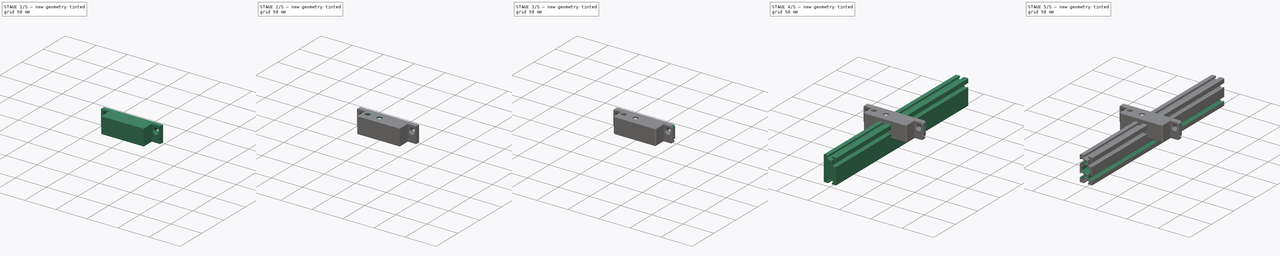
[diagram: build sequence overview — one tinted view per stage of 5, left to right]
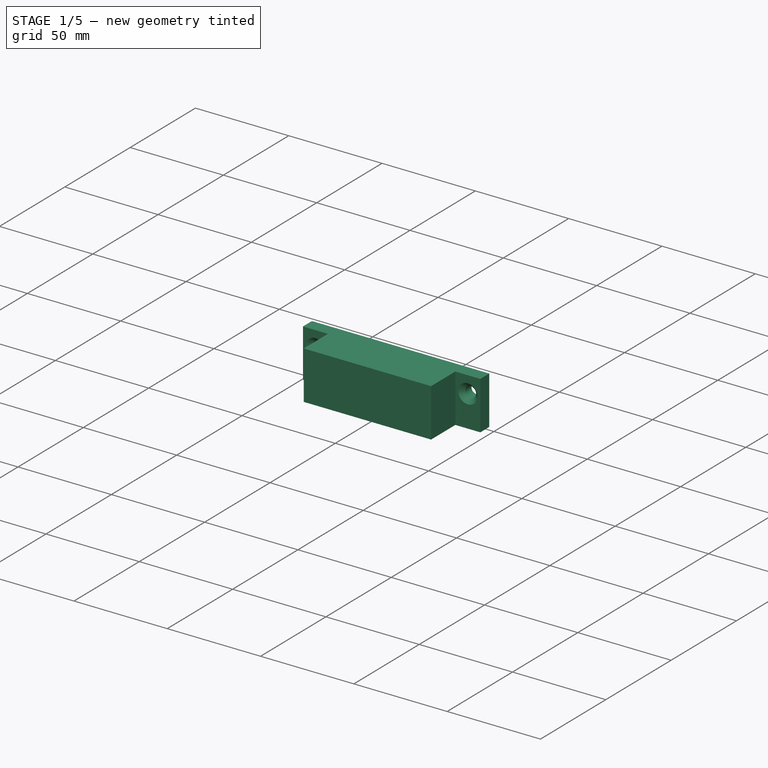
[diagram: stage 1 of 5 — iso view after this stage's code; geometry added in this stage tinted green]
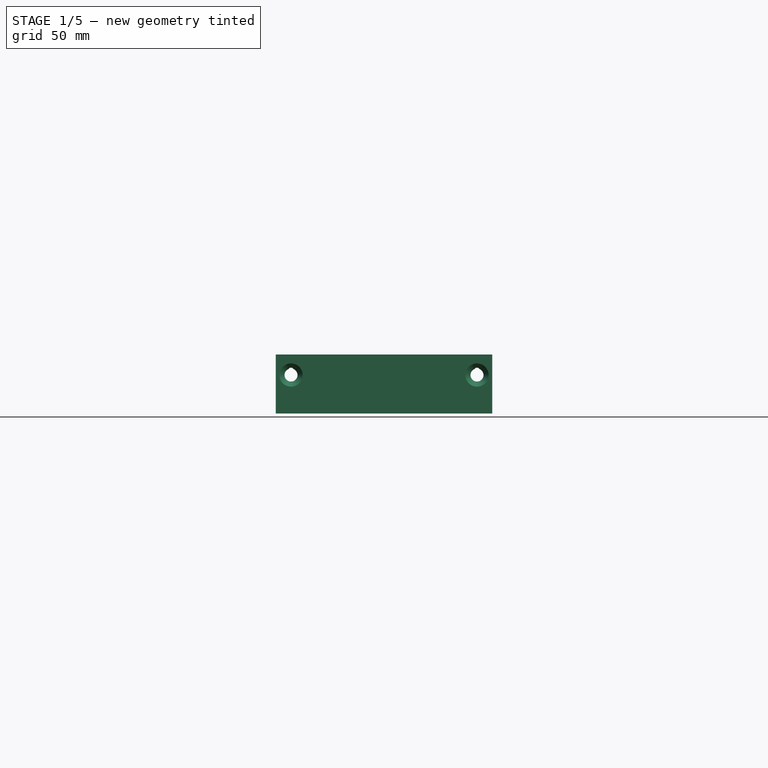
[diagram: stage 1 of 5 — front view after this stage's code; geometry added in this stage tinted green]
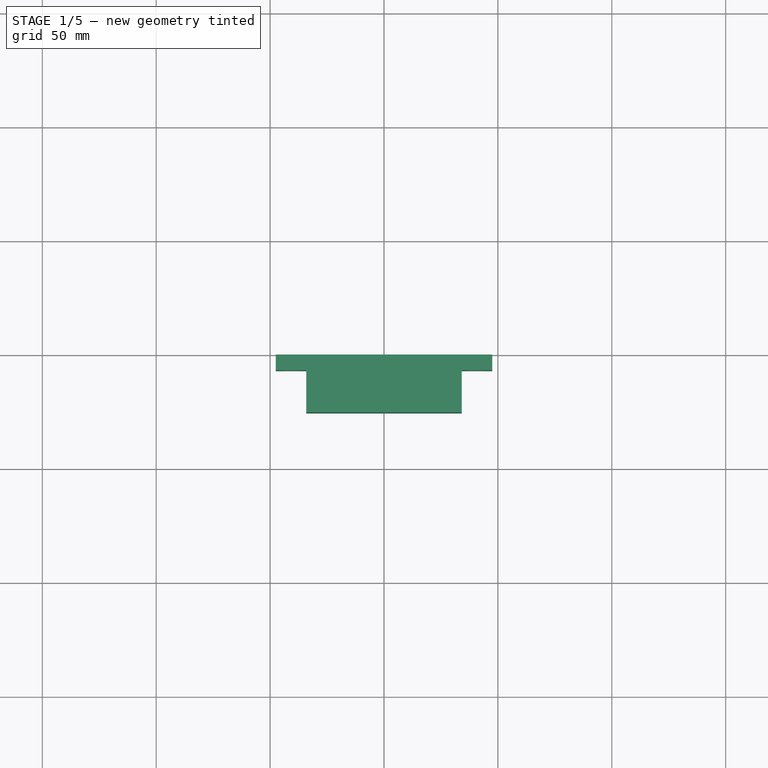
[diagram: stage 1 of 5 — top view after this stage's code; geometry added in this stage tinted green]
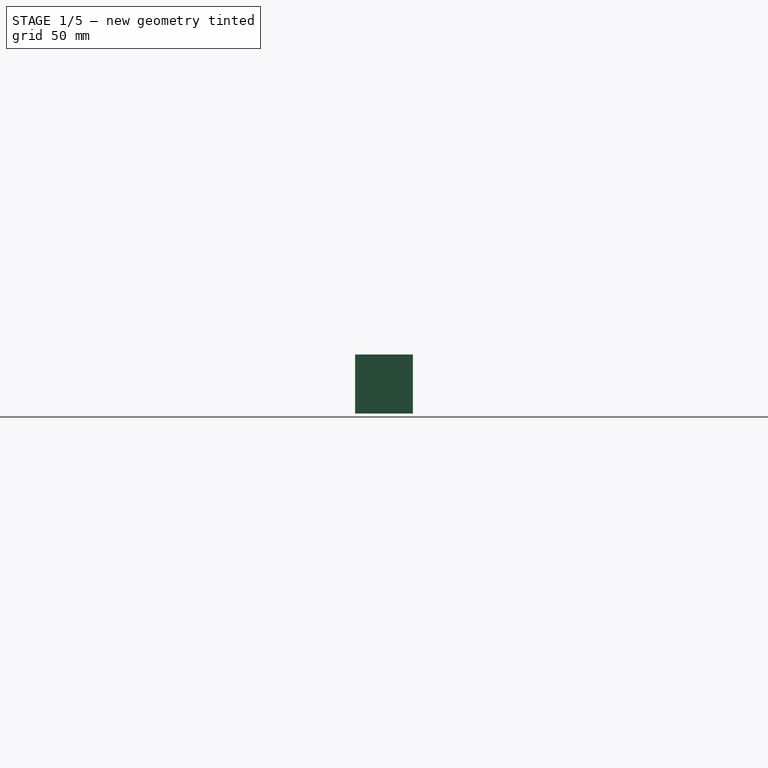
[diagram: stage 1 of 5 — right view after this stage's code; geometry added in this stage tinted green]
FCSTD DOCUMENT  (FreeCAD 1.0R39109 (Git))
Label: isolated_probe_mount
License: All rights reserved
LicenseURL: http://en.wikipedia.org/wiki/All_rights_reserved
objects: Sketcher::SketchObject×12, PartDesign::Pocket×8, PartDesign::Mirrored×4, PartDesign::Chamfer×4, PartDesign::Pad×3, PartDesign::LinearPattern×3, PartDesign::Body×2, PartDesign::MultiTransform×1, App::Part×1, Spreadsheet::Sheet×1, PartDesign::Hole×1
note: 90 computed .brp shape members not serialized (recipe doc carries the construction recipe); baked Part::Feature solids carry a one-line shape summary decoded from their .brp

FEATURE [PartDesign::Body] Body006  label="2040"
  AllowCompound = false
  Group = -> [Sketch010,Pad004,Sketch013,Pocket007,Mirrored001,Sketch012,Pocket005,MultiTransform,LinearPattern002,Mirrored002,Sketch009,Pocket006,Mirrored003,Sketch011,Pocket008]
  Origin = -> Origin011
  Placement = pos=(0,0,0) rot=(0,0,1;1.5708rad)
  Tip = -> Pocket008
FEATURE [App::Part] Part  label="aluminum"
  Group = -> [Body006]
  Origin = -> Origin
FEATURE [Spreadsheet::Sheet] Spreadsheet  label="settings"
  cells = A1='After changing parameters refresh (CTRL + R) to update the model; A3='Print Tolerance; B3(tolerance)=0.2; C3='<- oversize/undersize dimensions by this amount, accounts for 3D print inacuracies; A4='Minimum Print Width; B4(min_width)=1.6; C4='<- minimum wall thickness; A5='Minimum Print Height; B5(min_height)=2.4; C5='<- minimum floor/ceiling thickness; A7='Bannana Jack; B7='Diameter; C7='Flat to Flat; D7='Spacing; B8(bannana_diameter)=8; C8(bannana_flat_to_flat)=6.3; D8(bannana_spacing)=19.05; A10='PCB; B10='Length; C10='Width; D10='Mounting Hole Spacing; B11(pcb_lenght)=31; C11(pcb_width)=20; D11(pcb_mount_spacing)=24; A13='Wire Channel; B13='Width; C13='Depth; B14(wire_channel_width)=3; C14(wire_channel_depth)=3; A16='M3 Self Tap Hole Diameter; B16(m3_self_tap_diameter)=2.4; A18='M5 Clearance Hole Diameter; B18(bolt_clearance_hole)=5.5; A19='M5 Counter Sink Diameter; B19(counter_sink_diameter)=10; A20='M5 Blunted Point; B20='Width; C20='Height; B21(hhbp_width)=2.4; C21(hhbp_height)=0.6; A23='Calculated Parameters; A24='DO NOT MODIFY; A25='Mount Tab Width; B25(mount_width)==counter_sink_diameter + tolerance + min_width + min_width
FEATURE [Sketcher::SketchObject] Sketch018
  ArcFitTolerance = 1e-06
  AttachmentSupport = -> [XY_Plane013]
  FullyConstrained = true
  MakeInternals = false
  MapMode = 5
  expr: Constraints[21] = <<settings>>.mount_width
  expr: Constraints[32] = <<settings>>.counter_sink_diameter + <<settings>>.tolerance
  expr: Constraints[33] = <<settings>>.bolt_clearance_hole + <<settings>>.tolerance
  expr: Constraints[35] = <<settings>>.min_width + <<settings>>.wire_channel_depth
  expr: Constraints[55] = <<settings>>.bannana_diameter + <<settings>>.tolerance
  expr: Constraints[58] = <<settings>>.bannana_spacing
  expr: Constraints[68] = <<settings>>.pcb_lenght
  sketch-geometry (26):
    g0: LineSegment StartX=-47.525 StartY=0 StartZ=0 EndX=-47.525 EndY=-6.85 EndZ=0
    g1: LineSegment StartX=-47.525 StartY=-6.85 StartZ=0 EndX=-34.125 EndY=-6.85 EndZ=0
    g2: LineSegment StartX=47.525 StartY=-6.85 StartZ=0 EndX=47.525 EndY=0 EndZ=0
    g3: LineSegment StartX=47.525 StartY=0 StartZ=0 EndX=-47.525 EndY=0 EndZ=0
    g4: LineSegment StartX=-34.125 StartY=-6.85 StartZ=0 EndX=-34.125 EndY=-25.4 EndZ=0
    g5: LineSegment StartX=-34.125 StartY=-25.4 StartZ=0 EndX=34.125 EndY=-25.4 EndZ=0
    g6: LineSegment StartX=34.125 StartY=-25.4 StartZ=0 EndX=34.125 EndY=-6.85 EndZ=0
    g7: LineSegment [constr] StartX=34.125 StartY=-6.85 StartZ=0 EndX=-34.125 EndY=-6.85 EndZ=0
    g8: LineSegment StartX=34.125 StartY=-6.85 StartZ=0 EndX=47.525 EndY=-6.85 EndZ=0
    g9: LineSegment [constr] StartX=47.525 StartY=-6.85 StartZ=0 EndX=57.725 EndY=-6.85 EndZ=0
    g10: LineSegment [constr] StartX=57.725 StartY=-6.85 StartZ=0 EndX=55.475 EndY=-4.6 EndZ=0
    g11: LineSegment [constr] StartX=55.475 StartY=-4.6 StartZ=0 EndX=49.775 EndY=-4.6 EndZ=0
    g12: LineSegment [constr] StartX=47.525 StartY=-6.85 StartZ=0 EndX=49.775 EndY=-4.6 EndZ=0
    g13: LineSegment [constr] StartX=52.625 StartY=-6.85 StartZ=0 EndX=52.625 EndY=-4.6 EndZ=0
    g14: LineSegment [constr] StartX=-2.875 StartY=-25.4 StartZ=0 EndX=-2.875 EndY=-6.85 EndZ=0
    g15: LineSegment [constr] StartX=-2.875 StartY=-6.85 StartZ=0 EndX=-11.075 EndY=-6.85 EndZ=0
    g16: LineSegment [constr] StartX=-11.075 StartY=-6.85 StartZ=0 EndX=-11.075 EndY=-25.4 EndZ=0
    g17: LineSegment [constr] StartX=-11.075 StartY=-25.4 StartZ=0 EndX=-2.875 EndY=-25.4 EndZ=0
    g18: LineSegment [constr] StartX=-21.925 StartY=-25.4 StartZ=0 EndX=-21.925 EndY=-6.85 EndZ=0
    g19: LineSegment [constr] StartX=-21.925 StartY=-6.85 StartZ=0 EndX=-30.125 EndY=-6.85 EndZ=0
    g20: LineSegment [constr] StartX=-30.125 StartY=-6.85 StartZ=0 EndX=-30.125 EndY=-25.4 EndZ=0
    g21: LineSegment [constr] StartX=-30.125 StartY=-25.4 StartZ=0 EndX=-21.925 EndY=-25.4 EndZ=0
    g22: LineSegment [constr] StartX=30.125 StartY=-25.4 StartZ=0 EndX=30.125 EndY=-6.85 EndZ=0
    g23: LineSegment [constr] StartX=30.125 StartY=-6.85 StartZ=0 EndX=-0.875 EndY=-6.85 EndZ=0
    g24: LineSegment [constr] StartX=-0.875 StartY=-6.85 StartZ=0 EndX=-0.875 EndY=-25.4 EndZ=0
    g25: LineSegment [constr] StartX=-0.875 StartY=-25.4 StartZ=0 EndX=30.125 EndY=-25.4 EndZ=0
  constraints (73):
    c: Coincident(g0,g1)
    c: Coincident(g8,g2)
    c: Coincident(g2,g3)
    c: Coincident(g3,g0)
    c: Vertical(g0)
    c: Vertical(g2)
    c: Horizontal(g1)
    c: PointOnObject(g0,g-1)
    c: Coincident(g4,g5)
    c: Coincident(g5,g6)
    c: Coincident(g6,g7)
    c: Coincident(g7,g4)
    c: Vertical(g4)
    c: Vertical(g6)
    c: Horizontal(g7)
    c: Coincident(g1,g4)
    c: Coincident(g6,g8)
    c: Horizontal(g8)
    c: Symmetric(g0,g2,g-2)
    c: Symmetric(g4,g5,g-2)
    c: DistanceY(g4,g0) = 25.4  'body_width'
    c: DistanceX(g8,g8) = 13.4
    c: Coincident(g9,g2)
    c: Horizontal(g9)
    c: Coincident(g10,g9)
    c: Coincident(g11,g10)
    c: Horizontal(g11)
    c: Coincident(g12,g2)
    c: Coincident(g12,g11)
    c: Symmetric(g9,g9,g13)
    c: Symmetric(g11,g11,g13)
    c: Vertical(g13)
    c: DistanceX(g9,g9) = 10.2
    c: DistanceX(g11,g11) = 5.7
    c: Perpendicular(g10,g12)
    c: DistanceY(g10,g2) = 4.6
    c: Coincident(g14,g15)
    c: Coincident(g15,g16)
    c: Coincident(g16,g17)
    c: Coincident(g17,g14)
    c: Vertical(g14)
    c: Vertical(g16)
    c: Horizontal(g15)
    c: Horizontal(g17)
    c: PointOnObject(g14,g5)
    c: Coincident(g18,g19)
    c: Coincident(g19,g20)
    c: Coincident(g20,g21)
    c: Coincident(g21,g18)
    c: Vertical(g18)
    c: Vertical(g20)
    c: Horizontal(g19)
    c: Horizontal(g21)
    c: PointOnObject(g18,g5)
    c: Equal(g19,g15)
    c: DistanceX(g19,g19) = 8.2
    c: PointOnObject(g19,g7)
    c: PointOnObject(g15,g7)
    c: DistanceX(g19,g15) = 19.05
    c: Coincident(g22,g23)
    c: Coincident(g23,g24)
    c: Coincident(g24,g25)
    c: Coincident(g25,g22)
    c: Vertical(g22)
    c: Vertical(g24)
    c: Horizontal(g23)
    c: Horizontal(g25)
    c: PointOnObject(g22,g5)
    c: DistanceX(g23,g23) = 31
    c: PointOnObject(g23,g7)
    c: Distance(g14,g23) = 2
    c: Distance(g22,g6) = 4  'pcb_edge_distance'
    c: DistanceX(g1,g19) = 4  'bannan_edge_distance'
FEATURE [PartDesign::Pad] Pad006
  Direction = (0,0,1)
  Length = 25.87
  Length2 = 10
  Profile = -> Sketch018
  ReferenceAxis = -> Sketch018 [N_Axis]
  Refine = true
  Suppressed = false
  Type = 0
  expr: Length = 25.87 mm
FEATURE [Sketcher::SketchObject] Sketch019
  ArcFitTolerance = 1e-06
  AttachmentSupport = -> [Pad006]
  ExternalGeometry = -> [Pad006]
  FullyConstrained = true
  MakeInternals = false
  MapMode = 5
  Placement = pos=(0,-6.85,0) rot=(1,0,0;1.5708rad)
  expr: Constraints[0] = 9 mm
  expr: Constraints[1] = 4 mm
  sketch-geometry (2):
    g0: Circle CenterX=40.825 CenterY=16.87 CenterZ=0 NormalX=0 NormalY=0 NormalZ=1 AngleXU=0 Radius=2
    g1: LineSegment [constr] StartX=40.825 StartY=16.87 StartZ=0 EndX=40.825 EndY=25.87 EndZ=0
  constraints (5):
    c: DistanceY(g0,g-3) = 9
    c: Diameter(g0) = 4
    c: Coincident(g1,g0)
    c: Symmetric(g-3,g-3,g1)
    c: Vertical(g1)
FEATURE [PartDesign::Hole] Hole002
  BaseFeature = -> Pad006
  CustomThreadClearance = 0
  Depth = 205.494
  DepthType = 1
  Diameter = 5.7
  DrillForDepth = false
  DrillPoint = 1
  DrillPointAngle = 118
  HoleCutCountersinkAngle = 90
  HoleCutCustomValues = false
  HoleCutDepth = 0
  HoleCutDiameter = 10.2
  HoleCutType = 2
  ModelThread = false
  Profile = -> Sketch019
  Refine = true
  Suppressed = false
  Tapered = false
  TaperedAngle = 90
  ThreadClass = 0
  ThreadDepth = 205.494
  ThreadDepthType = 0
  ThreadDirection = 0
  ThreadFit = 0
  ThreadSize = 0
  ThreadType = 0
  Threaded = false
  UseCustomThreadClearance = false
  expr: Diameter = <<settings>>.bolt_clearance_hole + <<settings>>.tolerance
  expr: HoleCutDiameter = <<settings>>.counter_sink_diameter + <<settings>>.tolerance
FEATURE [Sketcher::SketchObject] Sketch020
  ArcFitTolerance = 1e-06
  AttachmentSupport = -> [Hole002]
  ExternalGeometry = -> [Hole002]
  FullyConstrained = true
  MakeInternals = false
  MapMode = 5
  Placement = pos=(0,0,0) rot=(0,0.707107,0.707107;3.14159rad)
  expr: Constraints[10] = <<settings>>.hhbp_width
  expr: Constraints[11] = <<settings>>.hhbp_height
  sketch-geometry (6):
    g0: LineSegment [constr] StartX=-39.625 StartY=19.4551 StartZ=0 EndX=-42.025 EndY=19.4551 EndZ=0
    g1: LineSegment StartX=-42.025 StartY=19.4551 StartZ=0 EndX=-41.425 EndY=20.0551 EndZ=0
    g2: LineSegment StartX=-41.425 StartY=20.0551 StartZ=0 EndX=-40.225 EndY=20.0551 EndZ=0
    g3: LineSegment StartX=-40.225 StartY=20.0551 StartZ=0 EndX=-39.625 EndY=19.4551 EndZ=0
    g4: ArcOfCircle CenterX=-40.825 CenterY=16.87 CenterZ=0 NormalX=0 NormalY=0 NormalZ=1 AngleXU=0 Radius=2.85 StartAngle=2.0054 EndAngle=7.41938
    g5: LineSegment [constr] StartX=-40.825 StartY=16.87 StartZ=0 EndX=-40.825 EndY=20.0551 EndZ=0
  constraints (16):
    c: PointOnObject(g0,g-3)
    c: Horizontal(g0)
    c: Coincident(g0,g1)
    c: Coincident(g1,g2)
    c: Horizontal(g2)
    c: Coincident(g2,g3)
    c: Coincident(g3,g0)
    c: Coincident(g4,g-3)
    c: Coincident(g4,g0)
    c: Coincident(g4,g0)
    c: DistanceX(g0,g0) = 2.4
    c: DistanceY(g0,g2) = 0.6
    c: Angle(g3,g0) = 0.785398
    c: Coincident(g5,g4)
    c: Symmetric(g2,g2,g5)
    c: Vertical(g5)
FEATURE [PartDesign::Pocket] Pocket009
  BaseFeature = -> Hole002
  Direction = (0,-1,2e-16)
  Length = 5
  Length2 = 5
  Profile = -> Sketch020
  ReferenceAxis = -> Sketch020 [N_Axis]
  Refine = true
  Suppressed = false
  Type = 1
FEATURE [PartDesign::Mirrored] Mirrored005
  BaseFeature = -> Pocket009
  MirrorPlane = -> Sketch019 [V_Axis]
  Originals = -> [Hole002,Pocket009]
  Refine = true
  Suppressed = false
  TransformMode = 0
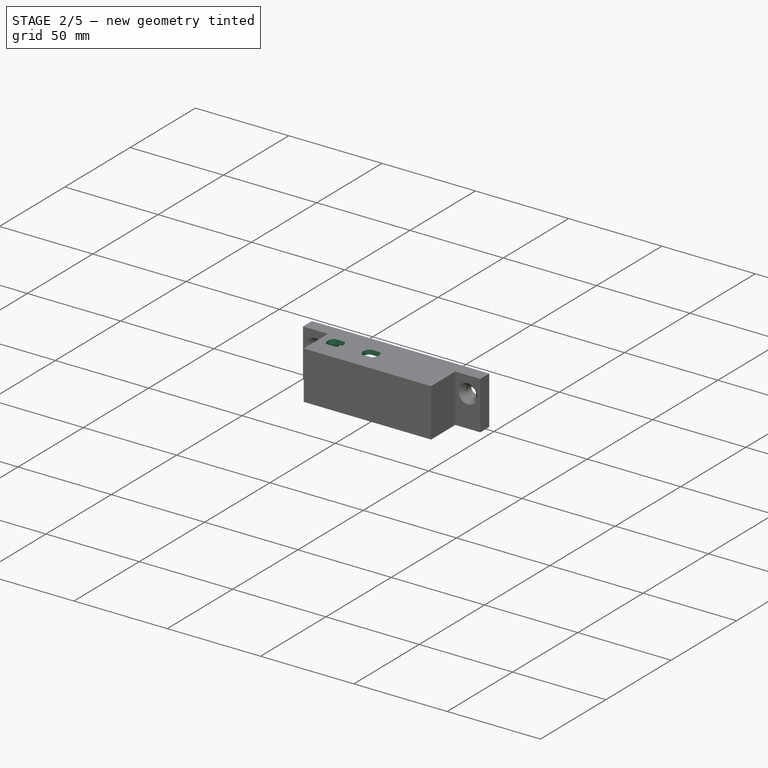
[diagram: stage 2 of 5 — iso view after this stage's code; geometry added in this stage tinted green]
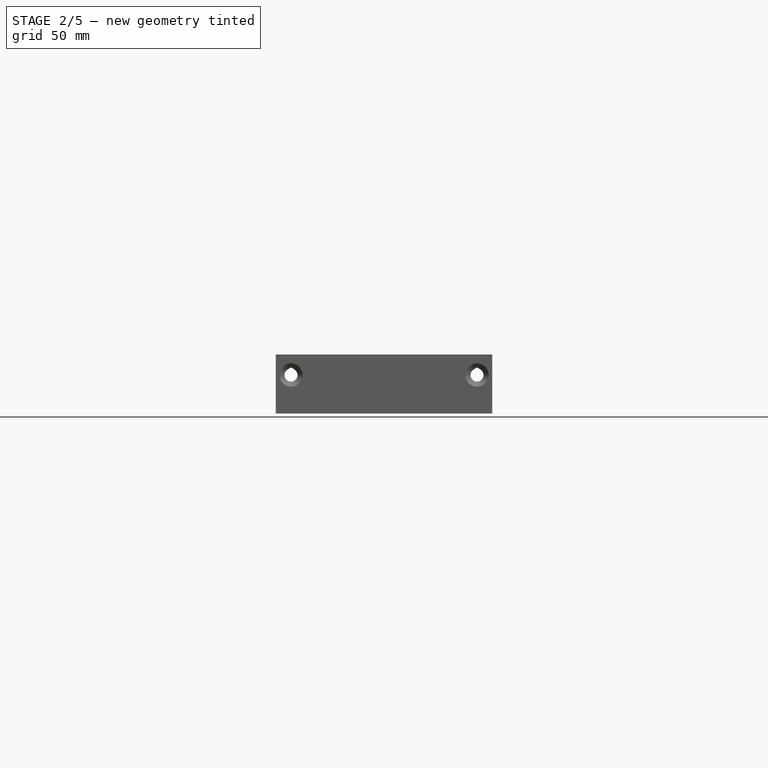
[diagram: stage 2 of 5 — front view after this stage's code; geometry added in this stage tinted green]
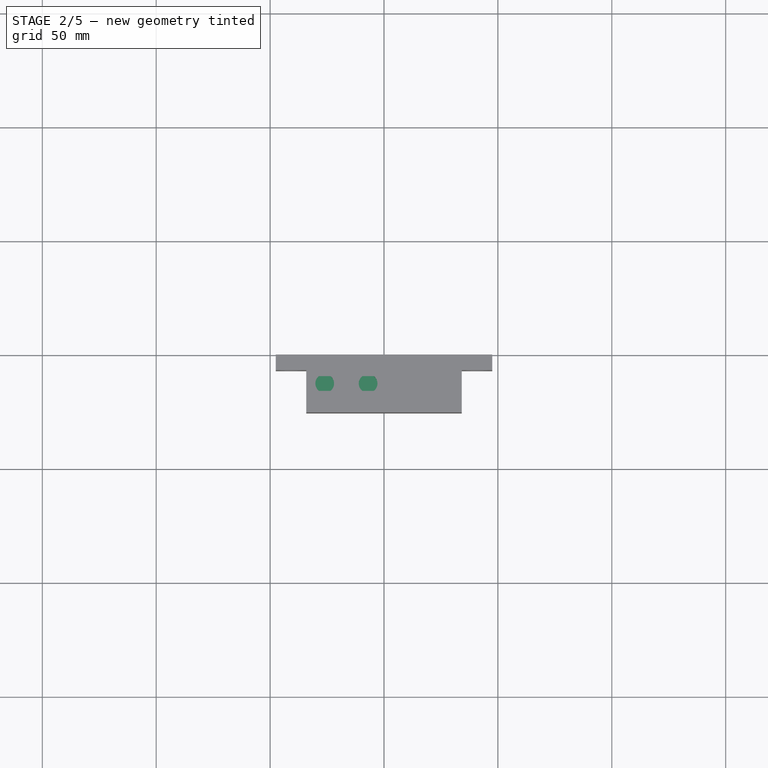
[diagram: stage 2 of 5 — top view after this stage's code; geometry added in this stage tinted green]
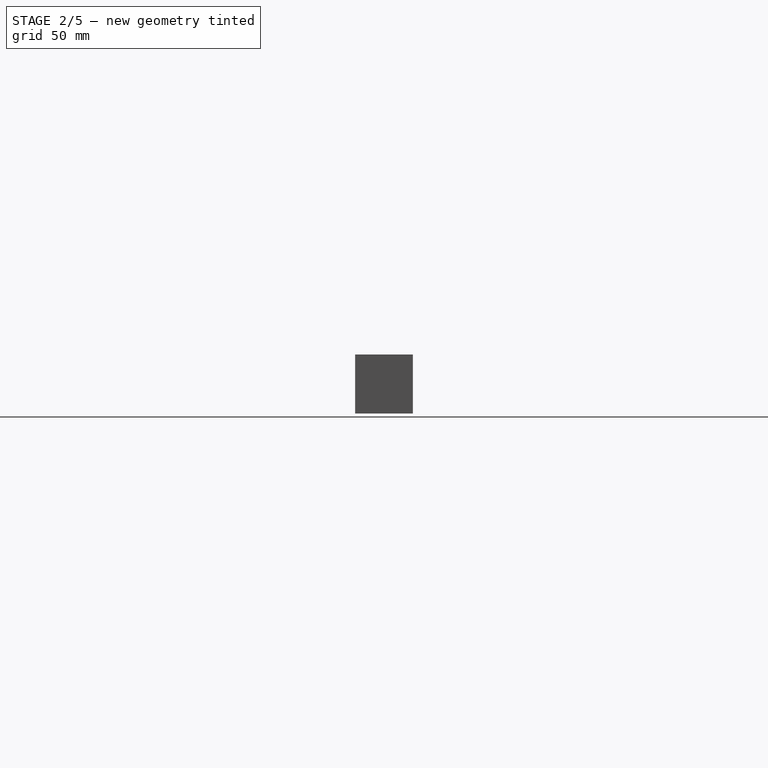
[diagram: stage 2 of 5 — right view after this stage's code; geometry added in this stage tinted green]
FEATURE [Sketcher::SketchObject] Sketch
  ArcFitTolerance = 1e-06
  AttachmentSupport = -> [Mirrored005]
  ExternalGeometry = -> [Mirrored005]
  FullyConstrained = true
  MakeInternals = false
  MapMode = 5
  Placement = pos=(0,0,0) rot=(0,0.707107,0.707107;3.14159rad)
  expr: Constraints[22] = <<settings>>.min_width
  expr: Constraints[23] = <<settings>>.min_height
  sketch-geometry (8):
    g0: LineSegment StartX=-32.525 StartY=23.47 StartZ=0 EndX=-32.525 EndY=2.4 EndZ=0
    g1: LineSegment StartX=-32.525 StartY=2.4 StartZ=0 EndX=32.525 EndY=2.4 EndZ=0
    g2: LineSegment StartX=32.525 StartY=2.4 StartZ=0 EndX=32.525 EndY=23.47 EndZ=0
    g3: LineSegment StartX=32.525 StartY=23.47 StartZ=0 EndX=-32.525 EndY=23.47 EndZ=0
    g4: LineSegment [constr] StartX=-32.525 StartY=23.47 StartZ=0 EndX=-34.125 EndY=23.47 EndZ=0
    g5: LineSegment [constr] StartX=32.525 StartY=23.47 StartZ=0 EndX=34.125 EndY=23.47 EndZ=0
    g6: LineSegment [constr] StartX=32.525 StartY=23.47 StartZ=0 EndX=32.525 EndY=25.87 EndZ=0
    g7: LineSegment [constr] StartX=32.525 StartY=2.4 StartZ=0 EndX=32.525 EndY=0 EndZ=0
  constraints (24):
    c: Coincident(g0,g1)
    c: Coincident(g1,g2)
    c: Coincident(g2,g3)
    c: Coincident(g3,g0)
    c: Vertical(g0)
    c: Vertical(g2)
    c: Horizontal(g1)
    c: Horizontal(g3)
    c: Coincident(g4,g0)
    c: PointOnObject(g4,g-3)
    c: Horizontal(g4)
    c: Coincident(g5,g2)
    c: PointOnObject(g5,g-4)
    c: Horizontal(g5)
    c: Coincident(g6,g2)
    c: Vertical(g6)
    c: Coincident(g7,g1)
    c: PointOnObject(g7,g-1)
    c: Vertical(g7)
    c: Equal(g4,g5)
    c: Equal(g6,g7)
    c: PointOnObject(g6,g-5)
    c: DistanceX(g4,g4) = 1.6
    c: DistanceY(g6,g6) = 2.4
FEATURE [PartDesign::Pocket] Pocket
  BaseFeature = -> Mirrored005
  Direction = (0,-1,2e-16)
  Length = 0
  Length2 = 5
  Offset = -1.6
  Profile = -> Sketch
  ReferenceAxis = -> Sketch [N_Axis]
  Refine = true
  Suppressed = false
  Type = 3
  UpToFace = -> Mirrored005 [Face16]
  expr: Offset = <<settings>>.min_width * -1
FEATURE [Sketcher::SketchObject] Sketch021
  ArcFitTolerance = 1e-06
  AttachmentSupport = -> [Pocket]
  ExternalGeometry = -> [Pocket]
  FullyConstrained = true
  MakeInternals = false
  MapMode = 5
  Placement = pos=(0,0,25.87) rot=(0,0,1;0rad)
  expr: Constraints[11] = <<settings>>.bannana_flat_to_flat + <<settings>>.tolerance
  expr: Constraints[18] = <<Sketch018>>.Constraints.bannan_edge_distance
  expr: Constraints[19] = <<Sketch018>>.Constraints.body_width / 2
  expr: Constraints[1] = <<settings>>.bannana_diameter + <<settings>>.tolerance
  sketch-geometry (6):
    g0: ArcOfCircle CenterX=-26.025 CenterY=-12.7 CenterZ=0 NormalX=0 NormalY=0 NormalZ=1 AngleXU=0 Radius=4.1 StartAngle=2.2264 EndAngle=4.05679
    g1: LineSegment StartX=-23.5255 StartY=-9.45 StartZ=0 EndX=-28.5245 EndY=-9.45 EndZ=0
    g2: LineSegment StartX=-28.5245 StartY=-15.95 StartZ=0 EndX=-23.5255 EndY=-15.95 EndZ=0
    g3: ArcOfCircle CenterX=-26.025 CenterY=-12.7 CenterZ=0 NormalX=0 NormalY=0 NormalZ=1 AngleXU=0 Radius=4.1 StartAngle=5.36799 EndAngle=7.19838
    g4: LineSegment [constr] StartX=-30.125 StartY=-12.7 StartZ=0 EndX=-34.125 EndY=-12.7 EndZ=0
    g5: LineSegment [constr] StartX=-30.125 StartY=-12.7 StartZ=0 EndX=-26.025 EndY=-12.7 EndZ=0
  constraints (20):
    c: PointOnObject(g2,g3)
    c: Diameter(g0) = 8.2
    c: Coincident(g3,g1)
    c: Coincident(g0,g1)
    c: Equal(g0,g3)
    c: Coincident(g0,g2)
    c: PointOnObject(g3,g2)
    c: Coincident(g0,g3)
    c: Equal(g1,g2)
    c: Horizontal(g1)
    c: Horizontal(g2)
    c: DistanceY(g2,g1) = 6.5
    c: PointOnObject(g4,g0)
    c: PointOnObject(g4,g-3)
    c: Horizontal(g4)
    c: Coincident(g5,g4)
    c: Coincident(g5,g0)
    c: Horizontal(g5)
    c: DistanceX(g4,g4) = 4
    c: DistanceY(g4,g-1) = 12.7
FEATURE [PartDesign::Pocket] Pocket010
  BaseFeature = -> Pocket
  Direction = (0,0,-1)
  Length = 5
  Length2 = 5
  Profile = -> Sketch021
  ReferenceAxis = -> Sketch021 [N_Axis]
  Refine = true
  Suppressed = false
  Type = 2
FEATURE [PartDesign::LinearPattern] LinearPattern
  BaseFeature = -> Pocket010
  Direction = -> Sketch021 [H_Axis]
  Length = 19.05
  Mode = 0
  Occurrences = 2
  Offset = 19.05
  Originals = -> [Pocket010]
  Refine = true
  Suppressed = false
  TransformMode = 0
  expr: Length = <<settings>>.bannana_spacing
FEATURE [Sketcher::SketchObject] Sketch022
  ArcFitTolerance = 1e-06
  AttachmentSupport = -> [LinearPattern]
  ExternalGeometry = -> [LinearPattern]
  FullyConstrained = true
  MakeInternals = false
  MapMode = 5
  Placement = pos=(0,-23.8,0) rot=(0,0.707107,0.707107;3.14159rad)
  expr: Constraints[10] = <<Sketch018>>.Constraints.pcb_edge_distance
  expr: Constraints[14] = 3.5 * 2
  expr: Constraints[17] = <<settings>>.m3_self_tap_diameter + <<settings>>.tolerance
  expr: Constraints[9] = <<settings>>.pcb_lenght
  sketch-geometry (13):
    g0: LineSegment [constr] StartX=-30.125 StartY=0 StartZ=0 EndX=0.875 EndY=0 EndZ=0
    g1: LineSegment [constr] StartX=0.875 StartY=0 StartZ=0 EndX=0.875 EndY=23.47 EndZ=0
    g2: LineSegment [constr] StartX=0.875 StartY=23.47 StartZ=0 EndX=-30.125 EndY=23.47 EndZ=0
    g3: LineSegment [constr] StartX=-30.125 StartY=23.47 StartZ=0 EndX=-30.125 EndY=0 EndZ=0
    g4: ArcOfCircle CenterX=-26.625 CenterY=6.4 CenterZ=0 NormalX=0 NormalY=0 NormalZ=1 AngleXU=0 Radius=3 StartAngle=-9e-16 EndAngle=3.14159
    g5: Circle [constr] CenterX=-26.625 CenterY=6.4 CenterZ=0 NormalX=0 NormalY=0 NormalZ=1 AngleXU=0 Radius=3.5
    g6: Circle CenterX=-26.625 CenterY=6.4 CenterZ=0 NormalX=0 NormalY=0 NormalZ=1 AngleXU=0 Radius=1.3
    g7: LineSegment [constr] StartX=-26.625 StartY=6.4 StartZ=0 EndX=-26.625 EndY=2.4 EndZ=0
    g8: GeomPoint [constr] X=-26.625 Y=2.9 Z=0
    g9: LineSegment StartX=-29.625 StartY=2.4 StartZ=0 EndX=-23.625 EndY=2.4 EndZ=0
    g10: LineSegment StartX=-23.625 StartY=2.4 StartZ=0 EndX=-23.625 EndY=6.4 EndZ=0
    g11: LineSegment [constr] StartX=-23.625 StartY=6.4 StartZ=0 EndX=-29.625 EndY=6.4 EndZ=0
    g12: LineSegment StartX=-29.625 StartY=6.4 StartZ=0 EndX=-29.625 EndY=2.4 EndZ=0
  constraints (36):
    c: Coincident(g0,g1)
    c: Coincident(g1,g2)
    c: Coincident(g2,g3)
    c: Coincident(g3,g0)
    c: Horizontal(g0)
    c: Horizontal(g2)
    c: Vertical(g1)
    c: Vertical(g3)
    c: PointOnObject(g0,g-1)
    c: DistanceX(g2,g2) = 31
    c: DistanceX(g-3,g2) = 4
    c: PointOnObject(g2,g-4)
    c: Diameter(g4) = 6
    c: Coincident(g5,g4)
    c: Diameter(g5) = 7
    c: Tangent(g5,g3)
    c: Coincident(g6,g4)
    c: Diameter(g6) = 2.6
    c: Coincident(g7,g4)
    c: PointOnObject(g7,g-5)
    c: Vertical(g7)
    c: PointOnObject(g8,g5)
    c: PointOnObject(g8,g7)
    c: Distance(g8,g7) = 0.5
    c: Coincident(g9,g10)
    c: Coincident(g10,g11)
    c: Coincident(g11,g12)
    c: Coincident(g12,g9)
    c: Horizontal(g9)
    c: Horizontal(g11)
    c: Vertical(g10)
    c: Vertical(g12)
    c: PointOnObject(g9,g-5)
    c: PointOnObject(g4,g11)
    c: Coincident(g4,g10)
    c: Coincident(g4,g11)
FEATURE [PartDesign::Pad] Pad
  BaseFeature = -> LinearPattern
  Direction = (0,1,-2e-16)
  Length = 10
  Length2 = 10
  Offset = 16
  Profile = -> Sketch022
  ReferenceAxis = -> Sketch022 [N_Axis]
  Refine = true
  Suppressed = false
  Type = 3
  UpToFace = -> LinearPattern [Face2]
FEATURE [PartDesign::LinearPattern] LinearPattern003
  BaseFeature = -> Pad
  Direction = -> Sketch022 [H_Axis]
  Length = 24
  Mode = 0
  Occurrences = 2
  Offset = 24
  Originals = -> [Pad]
  Refine = true
  Suppressed = false
  TransformMode = 0
  expr: Length = <<settings>>.pcb_mount_spacing
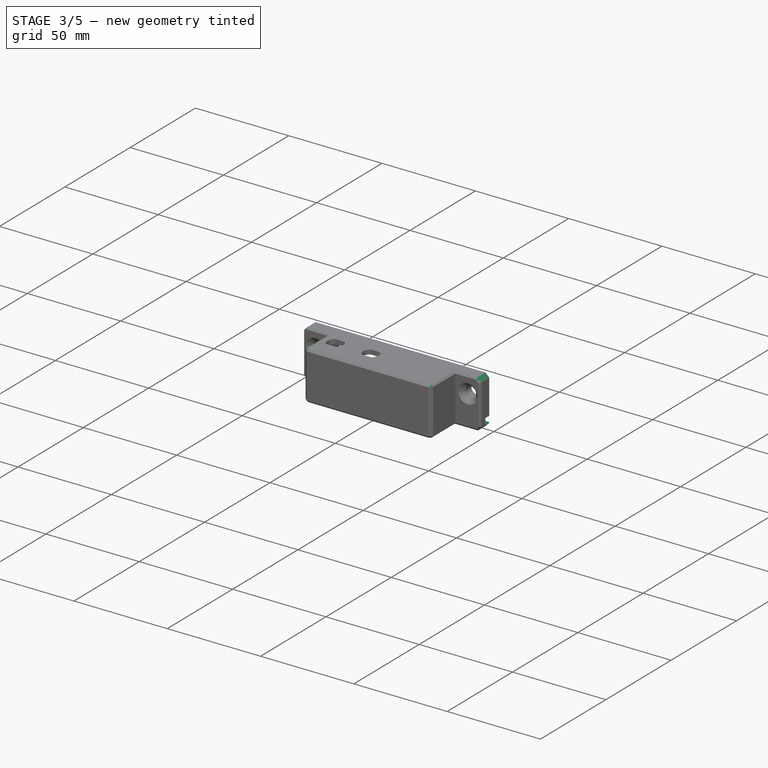
[diagram: stage 3 of 5 — iso view after this stage's code; geometry added in this stage tinted green]
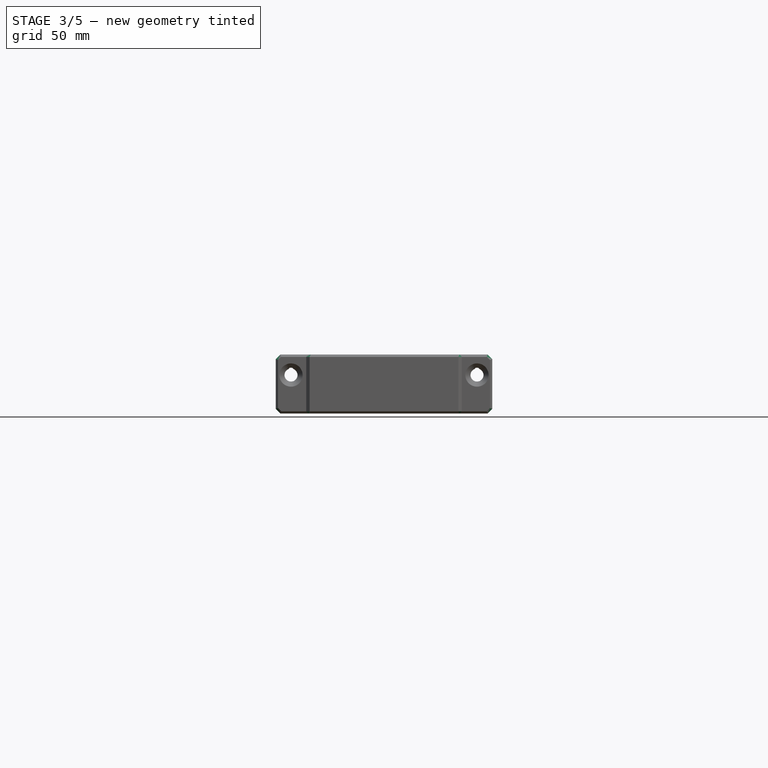
[diagram: stage 3 of 5 — front view after this stage's code; geometry added in this stage tinted green]
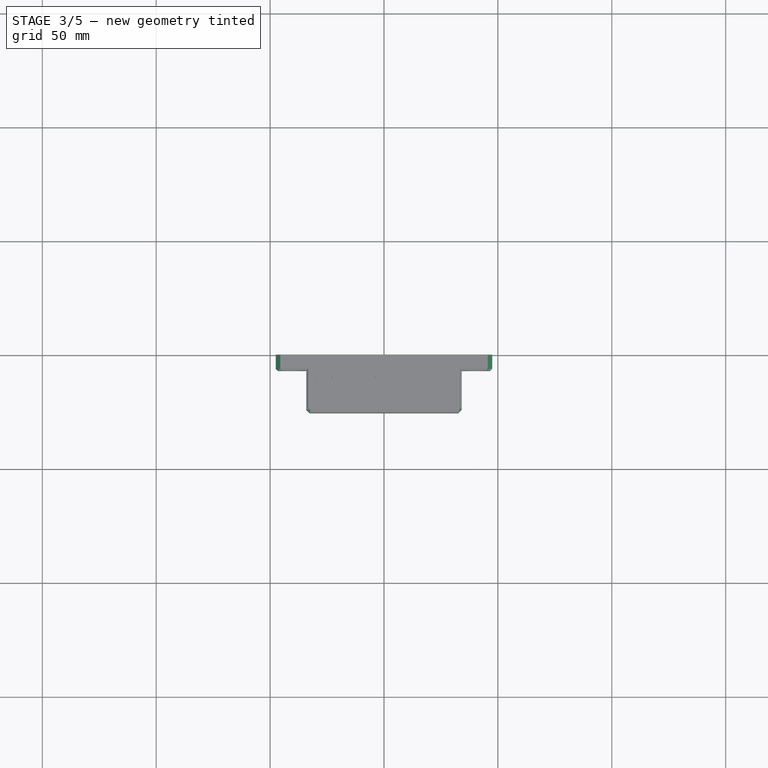
[diagram: stage 3 of 5 — top view after this stage's code; geometry added in this stage tinted green]
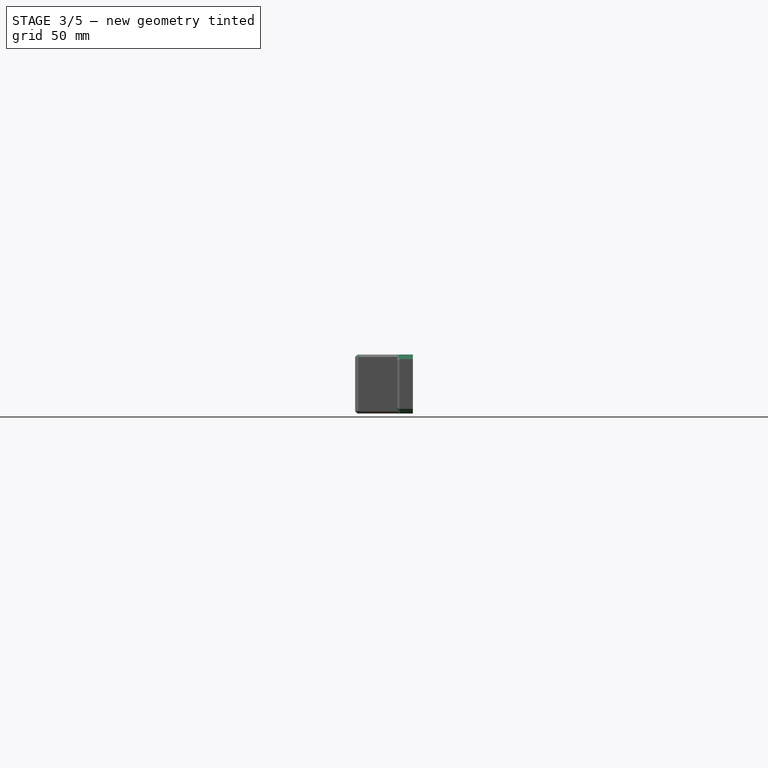
[diagram: stage 3 of 5 — right view after this stage's code; geometry added in this stage tinted green]
FEATURE [PartDesign::Chamfer] Chamfer
  Angle = 45
  Base = -> LinearPattern003 [Edge31,Edge4,Edge30,Edge3]
  BaseFeature = -> LinearPattern003
  ChamferType = 0
  FlipDirection = false
  Refine = true
  Size = 2
  Size2 = 1
  SupportTransform = false
  Suppressed = false
  UseAllEdges = false
FEATURE [PartDesign::Chamfer] Chamfer001
  Angle = 45
  Base = -> Chamfer [Edge103,Edge99]
  BaseFeature = -> Chamfer
  ChamferType = 0
  FlipDirection = false
  Refine = true
  Size = 1.5
  Size2 = 1
  SupportTransform = false
  Suppressed = false
  UseAllEdges = false
FEATURE [PartDesign::Chamfer] Chamfer002
  Angle = 45
  Base = -> Chamfer001 [Edge51,Edge53,Edge52,Edge48,Edge26,Edge22,Edge15,Edge13,Edge19,Edge18,Edge16,Edge17,Edge3,Edge1,Edge2,Edge4,Edge6,Edge8,Edge10,Edge49]
  BaseFeature = -> Chamfer001
  ChamferType = 0
  FlipDirection = false
  Refine = true
  Size = 1
  Size2 = 1
  SupportTransform = false
  Suppressed = false
  UseAllEdges = false
FEATURE [Sketcher::SketchObject] Sketch023
  ArcFitTolerance = 1e-06
  AttachmentSupport = -> [Chamfer002]
  ExternalGeometry = -> [Chamfer002]
  FullyConstrained = true
  MakeInternals = false
  MapMode = 5
  Placement = pos=(0,0,0) rot=(0,0.707107,0.707107;3.14159rad)
  expr: Constraints[10] = <<settings>>.wire_channel_width
  sketch-geometry (4):
    g0: LineSegment StartX=-32.525 StartY=2.4 StartZ=0 EndX=-32.525 EndY=5.4 EndZ=0
    g1: LineSegment StartX=-32.525 StartY=5.4 StartZ=0 EndX=-47.525 EndY=5.4 EndZ=0
    g2: LineSegment StartX=-47.525 StartY=5.4 StartZ=0 EndX=-47.525 EndY=2.4 EndZ=0
    g3: LineSegment StartX=-47.525 StartY=2.4 StartZ=0 EndX=-32.525 EndY=2.4 EndZ=0
  constraints (11):
    c: Coincident(g0,g1)
    c: Coincident(g1,g2)
    c: Coincident(g2,g3)
    c: Coincident(g3,g0)
    c: Vertical(g0)
    c: Vertical(g2)
    c: Horizontal(g1)
    c: Horizontal(g3)
    c: Coincident(g0,g-3)
    c: PointOnObject(g1,g-4)
    c: DistanceY(g2,g2) = 3
FEATURE [PartDesign::Pocket] Pocket011
  BaseFeature = -> Chamfer002
  Direction = (0,-1,2e-16)
  Length = 3
  Length2 = 5
  Profile = -> Sketch023
  ReferenceAxis = -> Sketch023 [N_Axis]
  Refine = true
  Suppressed = false
  Type = 0
  expr: Length = <<settings>>.wire_channel_depth
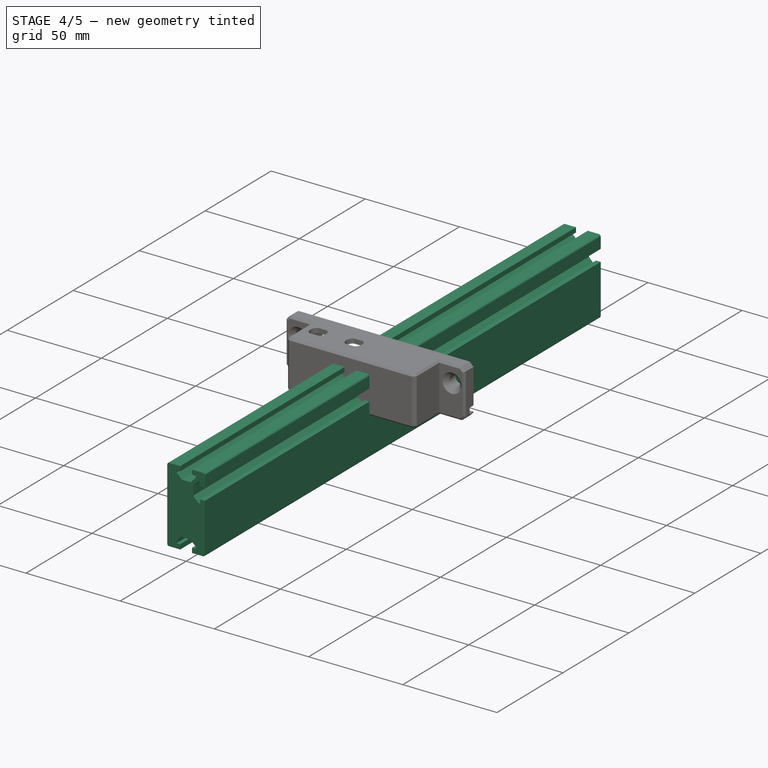
[diagram: stage 4 of 5 — iso view after this stage's code; geometry added in this stage tinted green]
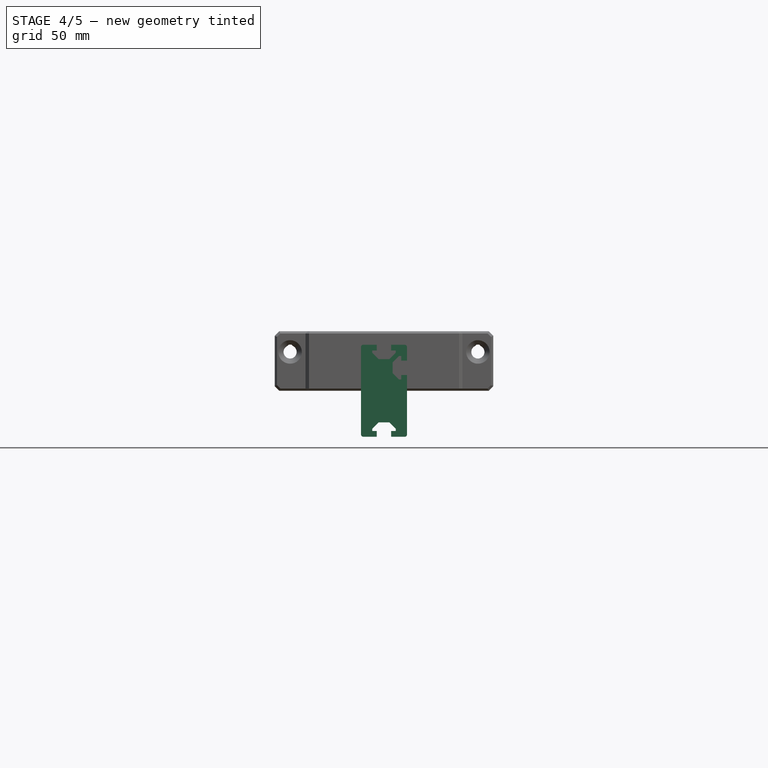
[diagram: stage 4 of 5 — front view after this stage's code; geometry added in this stage tinted green]
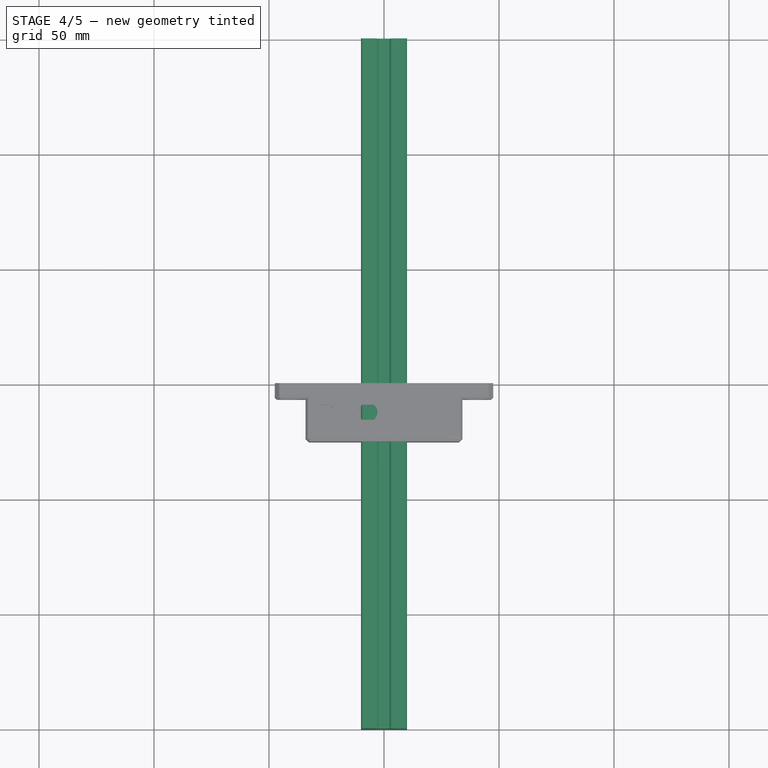
[diagram: stage 4 of 5 — top view after this stage's code; geometry added in this stage tinted green]
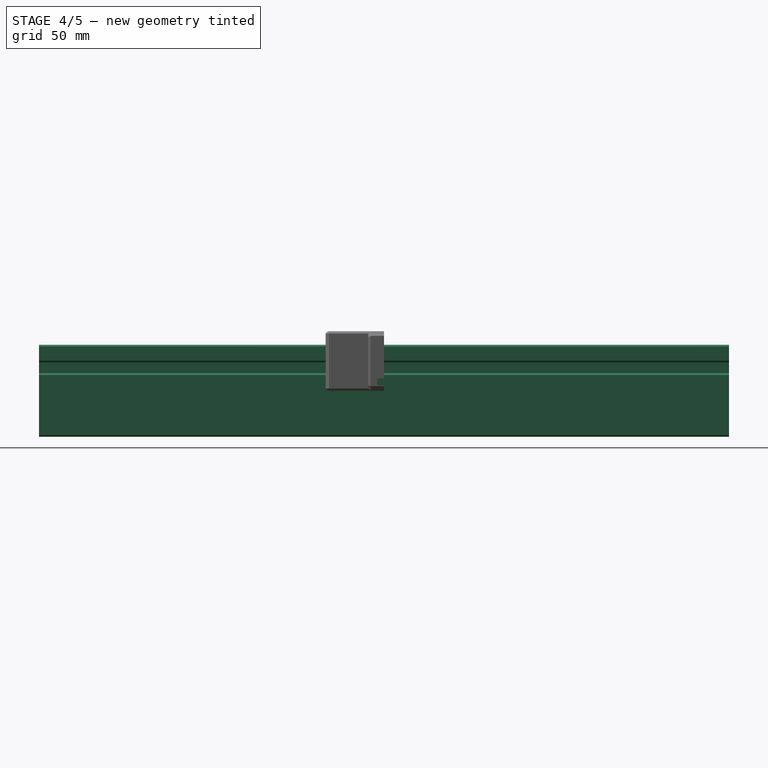
[diagram: stage 4 of 5 — right view after this stage's code; geometry added in this stage tinted green]
FEATURE [Sketcher::SketchObject] Sketch010
  ArcFitTolerance = 0
  AttachmentSupport = -> [XZ_Plane011]
  FullyConstrained = true
  MakeInternals = false
  MapMode = 5
  Placement = pos=(0,0,0) rot=(1,0,0;1.5708rad)
  sketch-geometry (8):
    g0: LineSegment StartX=-9 StartY=20 StartZ=0 EndX=9 EndY=20 EndZ=0
    g1: LineSegment StartX=10 StartY=19 StartZ=0 EndX=10 EndY=-19 EndZ=0
    g2: LineSegment StartX=9 StartY=-20 StartZ=0 EndX=-9 EndY=-20 EndZ=0
    g3: LineSegment StartX=-10 StartY=-19 StartZ=0 EndX=-10 EndY=19 EndZ=0
    g4: ArcOfCircle CenterX=9 CenterY=19 CenterZ=0 NormalX=0 NormalY=0 NormalZ=1 AngleXU=0 Radius=1 StartAngle=-9e-16 EndAngle=1.5708
    g5: ArcOfCircle CenterX=9 CenterY=-19 CenterZ=0 NormalX=0 NormalY=0 NormalZ=1 AngleXU=0 Radius=1 StartAngle=4.71239 EndAngle=6.28319
    g6: ArcOfCircle CenterX=-9 CenterY=-19 CenterZ=0 NormalX=0 NormalY=0 NormalZ=1 AngleXU=0 Radius=1 StartAngle=3.14159 EndAngle=4.71239
    g7: ArcOfCircle CenterX=-9 CenterY=19 CenterZ=0 NormalX=0 NormalY=0 NormalZ=1 AngleXU=0 Radius=1 StartAngle=1.5708 EndAngle=3.14159
  constraints (18):
    c: Horizontal(g0)
    c: Horizontal(g2)
    c: Vertical(g1)
    c: Vertical(g3)
    c: Tangent(g0,g4) = 1.5708
    c: Tangent(g1,g4) = 1.5708
    c: Tangent(g1,g5) = 1.5708
    c: Tangent(g2,g5) = 1.5708
    c: Tangent(g2,g6) = 1.5708
    c: Tangent(g3,g6) = 1.5708
    c: Tangent(g3,g7) = 1.5708
    c: Tangent(g0,g7) = 1.5708
    c: Equal(g5,g6)
    c: Radius(g4) = 1
    c: DistanceX(g3,g1) = 20
    c: DistanceY(g2,g0) = 40
    c: Symmetric(g4,g7,g-2)
    c: Symmetric(g4,g5,g-1)
FEATURE [PartDesign::Pad] Pad004
  AllowMultiFace = false
  Direction = (0,-1,2e-16)
  Length = 300
  Length2 = 100
  Midplane = true
  Placement = pos=(0,0,0) rot=(1,0,0;1.5708rad)
  Profile = -> Sketch010
  Refine = true
  Suppressed = false
  Type = 0
FEATURE [Sketcher::SketchObject] Sketch013
  ArcFitTolerance = 0
  AttachmentSupport = -> [Pad004]
  ExternalGeometry = -> [Pad004]
  FullyConstrained = true
  MakeInternals = false
  MapMode = 5
  Placement = pos=(0,-150,0) rot=(1,0,0;1.5708rad)
  sketch-geometry (15):
    g0: LineSegment StartX=-3.125 StartY=20 StartZ=0 EndX=3.125 EndY=20 EndZ=0
    g1: LineSegment StartX=3.125 StartY=20 StartZ=0 EndX=3.125 EndY=17.5 EndZ=0
    g2: LineSegment StartX=-3.125 StartY=17.5 StartZ=0 EndX=-3.125 EndY=20 EndZ=0
    g3: LineSegment StartX=5.08579 StartY=17.5 StartZ=0 EndX=5.08579 EndY=16.5 EndZ=0
    g4: LineSegment StartX=-5.08579 StartY=16.5 StartZ=0 EndX=-5.08579 EndY=17.5 EndZ=0
    g5: LineSegment StartX=-5.08579 StartY=16.5 StartZ=0 EndX=-2.33579 EndY=13.75 EndZ=0
    g6: LineSegment StartX=-2.33579 StartY=13.75 StartZ=0 EndX=2.33579 EndY=13.75 EndZ=0
    g7: LineSegment StartX=2.33579 StartY=13.75 StartZ=0 EndX=5.08579 EndY=16.5 EndZ=0
    g8: LineSegment StartX=3.125 StartY=17.5 StartZ=0 EndX=5.08579 EndY=17.5 EndZ=0
    g9: LineSegment StartX=-3.125 StartY=17.5 StartZ=0 EndX=-5.08579 EndY=17.5 EndZ=0
    g10: LineSegment [constr] StartX=-3.125 StartY=17.5 StartZ=0 EndX=3.125 EndY=17.5 EndZ=0
    g11: LineSegment [constr] StartX=5.08579 StartY=16.5 StartZ=0 EndX=-5.08579 EndY=16.5 EndZ=0
    g12: LineSegment [constr] StartX=-9 StartY=19 StartZ=0 EndX=0 EndY=10 EndZ=0
    g13: LineSegment [constr] StartX=0 StartY=10 StartZ=0 EndX=9 EndY=19 EndZ=0
    g14: LineSegment [constr] StartX=5.08579 StartY=16.5 StartZ=0 EndX=5.79289 EndY=15.7929 EndZ=0
  constraints (41):
    c: Coincident(g0,g1)
    c: Coincident(g2,g0)
    c: Horizontal(g0)
    c: Vertical(g1)
    c: Vertical(g2)
    c: PointOnObject(g0,g-3)
    c: Vertical(g3)
    c: Vertical(g4)
    c: Coincident(g6,g5)
    c: Horizontal(g6)
    c: Coincident(g7,g6)
    c: Coincident(g7,g3)
    c: Coincident(g8,g1)
    c: Coincident(g8,g3)
    c: Coincident(g9,g2)
    c: Coincident(g9,g4)
    c: Horizontal(g8)
    c: Horizontal(g9)
    c: Coincident(g10,g2)
    c: Coincident(g10,g1)
    c: Coincident(g11,g3)
    c: Coincident(g11,g4)
    c: Horizontal(g11)
    c: DistanceX(g0,g0) = 6.25
    c: DistanceY(g1,g1) = 2.5
    c: DistanceY(g4,g4) = 1
    c: Coincident(g5,g4)
    c: DistanceY(g6,g0) = 6.25
    c: Coincident(g12,g-5)
    c: PointOnObject(g12,g-2)
    c: Coincident(g13,g12)
    c: Coincident(g13,g-4)
    c: DistanceY(g12,g-4) = 10
    c: Parallel(g13,g7)
    c: Parallel(g12,g5)
    c: Coincident(g14,g3)
    c: PointOnObject(g14,g13)
    c: Perpendicular(g7,g14)
    c: Distance(g14) = 1
    c: Equal(g8,g9)
    c: Symmetric(g1,g2,g-2)
FEATURE [PartDesign::Pocket] Pocket007
  AllowMultiFace = false
  BaseFeature = -> Pad004
  Direction = (0,1,-2e-16)
  Length = 5
  Length2 = 100
  Placement = pos=(0,0,0) rot=(1,0,0;1.5708rad)
  Profile = -> Sketch013
  Refine = true
  Suppressed = false
  Type = 1
FEATURE [PartDesign::Mirrored] Mirrored001
  BaseFeature = -> Pocket007
  MirrorPlane = -> XY_Plane011
  Originals = -> [Pocket007]
  Placement = pos=(0,0,0) rot=(1,0,0;1.5708rad)
  Refine = true
  Suppressed = false
  TransformMode = 0
FEATURE [Sketcher::SketchObject] Sketch012
  ArcFitTolerance = 0
  AttachmentSupport = -> [Mirrored001]
  ExternalGeometry = -> [Mirrored001]
  FullyConstrained = true
  MakeInternals = false
  MapMode = 5
  Placement = pos=(0,-150,0) rot=(1,0,0;1.5708rad)
  sketch-geometry (16):
    g0: LineSegment [constr] StartX=9 StartY=19 StartZ=0 EndX=0 EndY=10 EndZ=0
    g1: LineSegment StartX=10 StartY=13.125 StartZ=0 EndX=7.5 EndY=13.125 EndZ=0
    g2: LineSegment StartX=7.5 StartY=6.875 StartZ=0 EndX=10 EndY=6.875 EndZ=0
    g3: LineSegment StartX=10 StartY=6.875 StartZ=0 EndX=10 EndY=13.125 EndZ=0
    g4: LineSegment StartX=7.5 StartY=15.0858 StartZ=0 EndX=6.5 EndY=15.0858 EndZ=0
    g5: LineSegment StartX=6.5 StartY=4.91421 StartZ=0 EndX=7.5 EndY=4.91421 EndZ=0
    g6: LineSegment StartX=7.5 StartY=13.125 StartZ=0 EndX=7.5 EndY=15.0858 EndZ=0
    g7: LineSegment StartX=7.5 StartY=6.875 StartZ=0 EndX=7.5 EndY=4.91421 EndZ=0
    g8: LineSegment StartX=6.5 StartY=15.0858 StartZ=0 EndX=3.75 EndY=12.3358 EndZ=0
    g9: LineSegment StartX=3.75 StartY=12.3358 StartZ=0 EndX=3.75 EndY=7.66421 EndZ=0
    g10: LineSegment StartX=3.75 StartY=7.66421 StartZ=0 EndX=6.5 EndY=4.91421 EndZ=0
    g11: LineSegment [constr] StartX=7.5 StartY=6.875 StartZ=0 EndX=7.5 EndY=13.125 EndZ=0
    g12: LineSegment [constr] StartX=10 StartY=10 StartZ=0 EndX=3.75 EndY=10 EndZ=0
    g13: LineSegment [constr] StartX=6.5 StartY=15.0858 StartZ=0 EndX=5.79289 EndY=15.7929 EndZ=0
    g14: LineSegment [constr] StartX=0 StartY=10 StartZ=0 EndX=10 EndY=4.423e-13 EndZ=0
    g15: LineSegment [constr] StartX=3.75 StartY=7.66421 StartZ=0 EndX=3.04289 EndY=6.95711 EndZ=0
  constraints (45):
    c: Coincident(g0,g-4)
    c: PointOnObject(g0,g-2)
    c: Parallel(g-5,g0)
    c: Coincident(g2,g3)
    c: Coincident(g3,g1)
    c: Horizontal(g1)
    c: Horizontal(g2)
    c: Vertical(g3)
    c: PointOnObject(g1,g-3)
    c: Horizontal(g4)
    c: Horizontal(g5)
    c: Coincident(g6,g1)
    c: Coincident(g6,g4)
    c: Coincident(g7,g2)
    c: Coincident(g7,g5)
    c: Coincident(g9,g8)
    c: Vertical(g9)
    c: Coincident(g10,g9)
    c: Coincident(g11,g2)
    c: Coincident(g11,g1)
    c: Vertical(g6)
    c: Vertical(g7)
    c: Symmetric(g1,g2,g12)
    c: Symmetric(g8,g9,g12)
    c: Parallel(g8,g0)
    c: DistanceY(g3,g3) = 6.25
    c: DistanceX(g9,g2) = 6.25
    c: DistanceX(g4,g4) = 1
    c: Symmetric(g2,g1,g12)
    c: Coincident(g8,g4)
    c: Coincident(g10,g5)
    c: Equal(g4,g5)
    c: Equal(g6,g7)
    c: DistanceX(g1,g1) = 2.5
    c: Coincident(g13,g4)
    c: PointOnObject(g13,g0)
    c: Perpendicular(g13,g8)
    c: Distance(g13) = 1
    c: Coincident(g14,g0)
    c: PointOnObject(g14,g-3)
    c: Perpendicular(g0,g14)
    c: Coincident(g15,g9)
    c: PointOnObject(g15,g14)
    c: Perpendicular(g10,g15)
    c: Distance(g15) = 1
FEATURE [PartDesign::LinearPattern] LinearPattern002
  Direction = -> Sketch012 [V_Axis]
  Length = 20
  Mode = 0
  Occurrences = 2
  Offset = 20
  Placement = pos=(0,0,0) rot=(1,0,0;1.5708rad)
  Refine = true
  Reversed = true
  Suppressed = false
  TransformMode = 0
FEATURE [PartDesign::Mirrored] Mirrored002
  MirrorPlane = -> Sketch012 [V_Axis]
  Placement = pos=(0,0,0) rot=(1,0,0;1.5708rad)
  Refine = true
  Suppressed = false
  TransformMode = 0
FEATURE [PartDesign::Pocket] Pocket005
  AllowMultiFace = false
  BaseFeature = -> Mirrored001
  Direction = (0,1,-2e-16)
  Length = 5
  Length2 = 100
  Placement = pos=(0,0,0) rot=(1,0,0;1.5708rad)
  Profile = -> Sketch012
  Refine = true
  Suppressed = false
  Type = 1
FEATURE [PartDesign::Chamfer] Chamfer003
  Angle = 45
  Base = -> Pocket011 [Edge86]
  BaseFeature = -> Pocket011
  ChamferType = 0
  FlipDirection = false
  Refine = true
  Size = 2
  Size2 = 1
  SupportTransform = false
  Suppressed = false
  UseAllEdges = false
FEATURE [PartDesign::Body] Body007  label="Body"
  AllowCompound = false
  Group = -> [Sketch018,Pad006,Sketch019,Hole002,Sketch020,Pocket009,Mirrored005,Sketch,Pocket,Sketch021,Pocket010,LinearPattern,Sketch022,Pad,LinearPattern003,Chamfer,Chamfer001,Chamfer002,Sketch023,Pocket011,Chamfer003]
  Origin = -> Origin013
  Placement = pos=(0,0,0) rot=(1,0,0;4.71239rad)
  Tip = -> Chamfer003
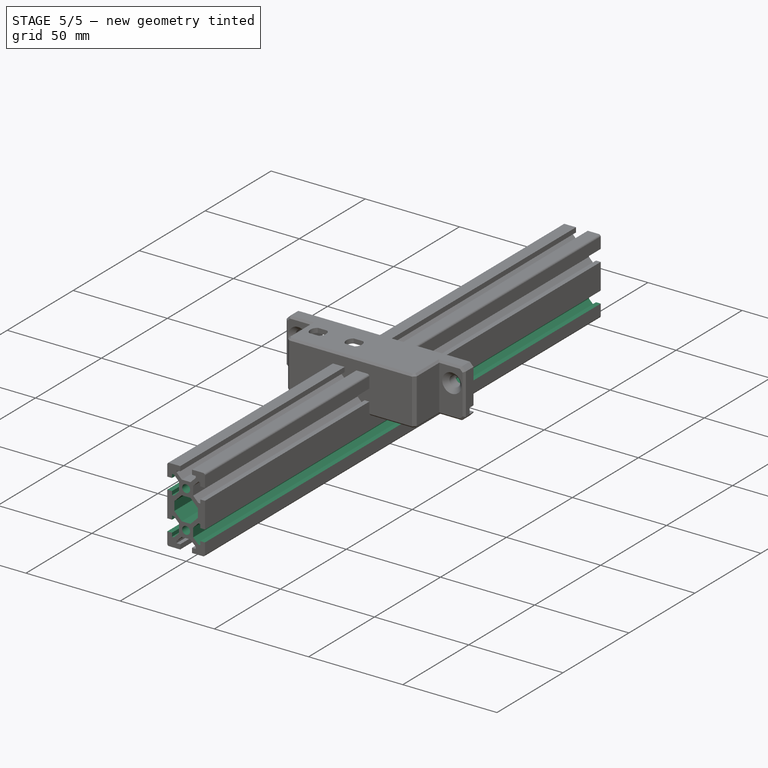
[diagram: stage 5 of 5 — iso view after this stage's code; geometry added in this stage tinted green]
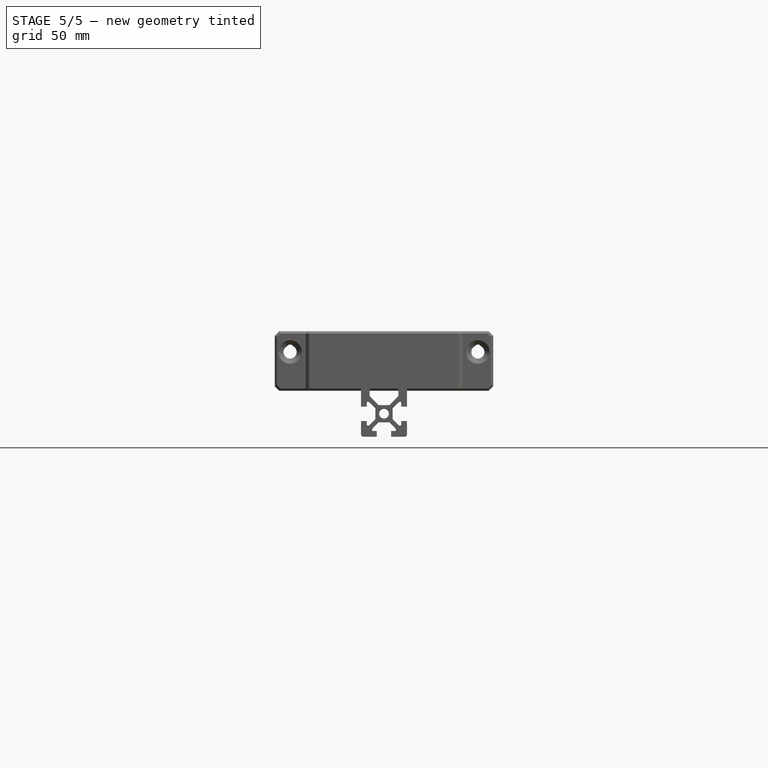
[diagram: stage 5 of 5 — front view after this stage's code; geometry added in this stage tinted green]
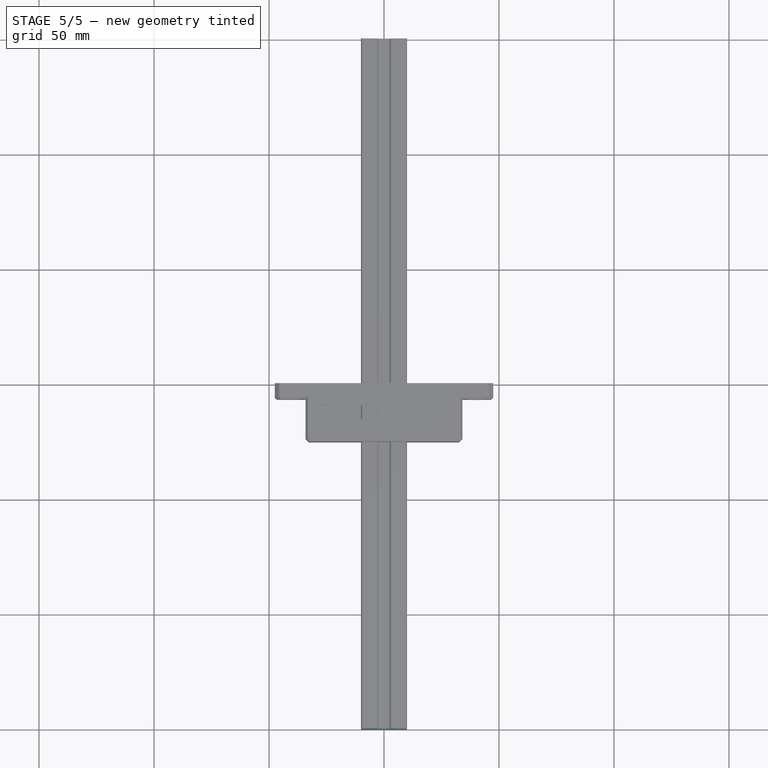
[diagram: stage 5 of 5 — top view after this stage's code; geometry added in this stage tinted green]
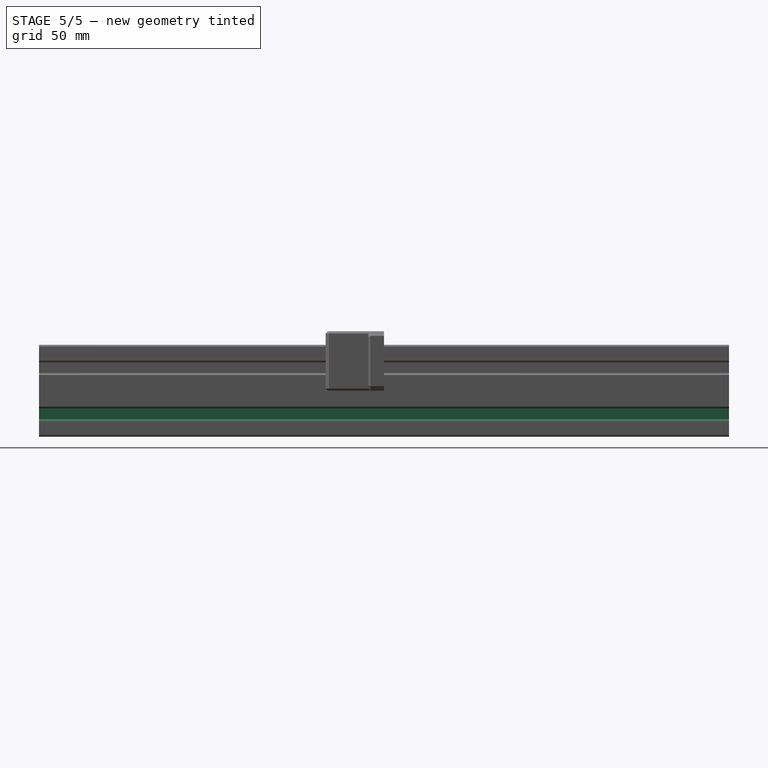
[diagram: stage 5 of 5 — right view after this stage's code; geometry added in this stage tinted green]
FEATURE [PartDesign::MultiTransform] MultiTransform
  BaseFeature = -> Pocket005
  Originals = -> [Pocket005]
  Placement = pos=(0,0,0) rot=(1,0,0;1.5708rad)
  Refine = true
  Suppressed = false
  TransformMode = 0
  Transformations = -> [LinearPattern002,Mirrored002]
FEATURE [Sketcher::SketchObject] Sketch009
  ArcFitTolerance = 0
  AttachmentSupport = -> [MultiTransform]
  ExternalGeometry = -> [MultiTransform]
  FullyConstrained = true
  MakeInternals = false
  MapMode = 5
  Placement = pos=(0,-150,0) rot=(1,0,0;1.5708rad)
  sketch-geometry (3):
    g0: LineSegment [constr] StartX=-9 StartY=19 StartZ=0 EndX=0 EndY=10 EndZ=0
    g1: LineSegment [constr] StartX=0 StartY=10 StartZ=0 EndX=9 EndY=19 EndZ=0
    g2: Circle CenterX=0 CenterY=10 CenterZ=0 NormalX=0 NormalY=0 NormalZ=1 AngleXU=0 Radius=2.1
  constraints (7):
    c: Coincident(g0,g-4)
    c: Coincident(g1,g0)
    c: Coincident(g1,g-3)
    c: PointOnObject(g0,g-2)
    c: Perpendicular(g0,g1)
    c: Coincident(g2,g0)
    c: Diameter(g2) = 4.2
FEATURE [PartDesign::Pocket] Pocket006
  AllowMultiFace = false
  BaseFeature = -> MultiTransform
  Direction = (0,1,-2e-16)
  Length = 5
  Length2 = 100
  Placement = pos=(0,0,0) rot=(1,0,0;1.5708rad)
  Profile = -> Sketch009
  Refine = true
  Suppressed = false
  Type = 1
FEATURE [PartDesign::Mirrored] Mirrored003
  BaseFeature = -> Pocket006
  MirrorPlane = -> Sketch009 [H_Axis]
  Originals = -> [Pocket006]
  Placement = pos=(0,0,0) rot=(1,0,0;1.5708rad)
  Refine = true
  Suppressed = false
  TransformMode = 0
FEATURE [Sketcher::SketchObject] Sketch011
  ArcFitTolerance = 0
  AttachmentSupport = -> [Mirrored003]
  ExternalGeometry = -> [Mirrored003]
  FullyConstrained = true
  MakeInternals = false
  MapMode = 5
  Placement = pos=(0,-150,0) rot=(1,0,0;1.5708rad)
  sketch-geometry (11):
    g0: LineSegment StartX=-2.33579 StartY=6.25 StartZ=0 EndX=-6.25 EndY=2.33579 EndZ=0
    g1: LineSegment StartX=-6.25 StartY=2.33579 StartZ=0 EndX=-6.25 EndY=-2.33579 EndZ=0
    g2: LineSegment StartX=-6.25 StartY=-2.33579 StartZ=0 EndX=-2.33579 EndY=-6.25 EndZ=0
    g3: LineSegment StartX=-2.33579 StartY=-6.25 StartZ=0 EndX=2.33579 EndY=-6.25 EndZ=0
    g4: LineSegment StartX=2.33579 StartY=-6.25 StartZ=0 EndX=6.25 EndY=-2.33579 EndZ=0
    g5: LineSegment StartX=6.25 StartY=-2.33579 StartZ=0 EndX=6.25 EndY=2.33579 EndZ=0
    g6: LineSegment StartX=6.25 StartY=2.33579 StartZ=0 EndX=2.33579 EndY=6.25 EndZ=0
    g7: LineSegment StartX=2.33579 StartY=6.25 StartZ=0 EndX=-2.33579 EndY=6.25 EndZ=0
    g8: LineSegment [constr] StartX=-2.33579 StartY=6.25 StartZ=0 EndX=2.33579 EndY=-6.25 EndZ=0
    g9: LineSegment [constr] StartX=-2.33579 StartY=-6.25 StartZ=0 EndX=2.33579 EndY=6.25 EndZ=0
    g10: LineSegment [constr] StartX=-2.33579 StartY=6.25 StartZ=0 EndX=-3.75 EndY=7.66421 EndZ=0
  constraints (31):
    c: Coincident(g1,g0)
    c: Vertical(g1)
    c: Coincident(g2,g1)
    c: Coincident(g3,g2)
    c: Horizontal(g3)
    c: Coincident(g4,g3)
    c: Coincident(g5,g4)
    c: Coincident(g6,g5)
    c: Coincident(g7,g6)
    c: Coincident(g7,g0)
    c: Horizontal(g7)
    c: Vertical(g5)
    c: Parallel(g6,g-4)
    c: Parallel(g0,g-3)
    c: Parallel(g4,g-5)
    c: Equal(g-7,g7)
    c: Equal(g7,g5)
    c: Equal(g5,g3)
    c: Equal(g3,g1)
    c: Equal(g0,g6)
    c: Equal(g6,g4)
    c: Coincident(g8,g0)
    c: Coincident(g8,g3)
    c: Coincident(g9,g2)
    c: Coincident(g9,g6)
    c: PointOnObject(g-1,g9)
    c: PointOnObject(g-1,g8)
    c: Coincident(g10,g0)
    c: PointOnObject(g10,g-3)
    c: Perpendicular(g10,g0)
    c: Distance(g10) = 2
FEATURE [PartDesign::Pocket] Pocket008
  AllowMultiFace = false
  BaseFeature = -> Mirrored003
  Direction = (0,1,-2e-16)
  Length = 5
  Length2 = 100
  Placement = pos=(0,0,0) rot=(1,0,0;1.5708rad)
  Profile = -> Sketch011
  Refine = true
  Suppressed = false
  Type = 1
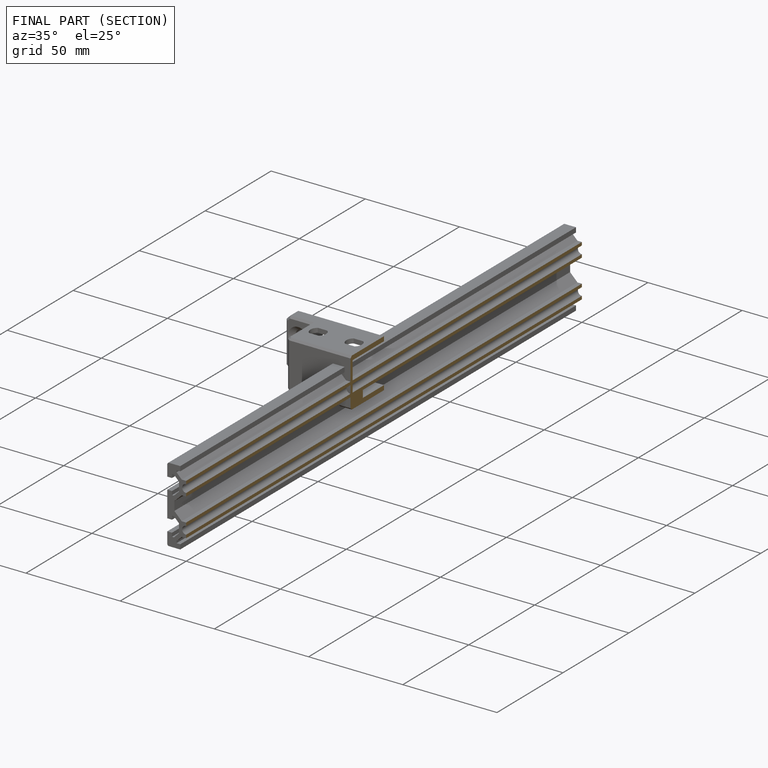
[diagram: finished part — half-section view (interior)]
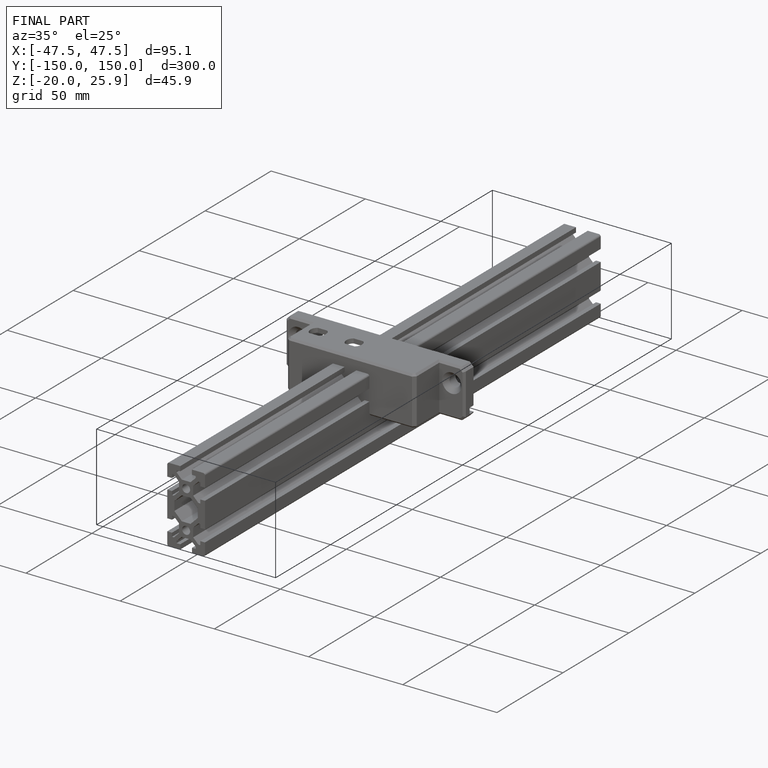
[diagram: finished part — iso view with bounding-box wireframe]
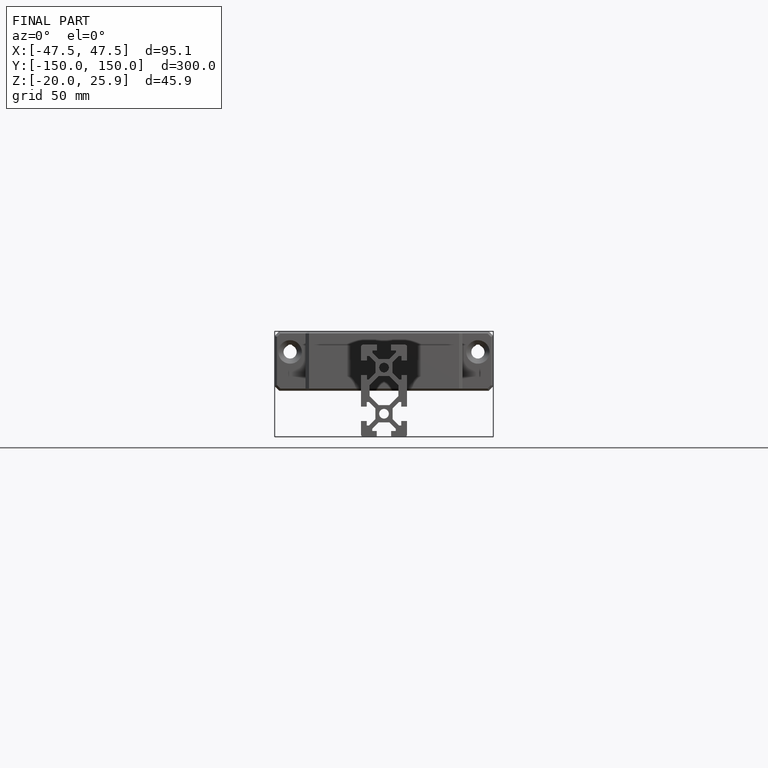
[diagram: finished part — front view with bounding-box wireframe]
